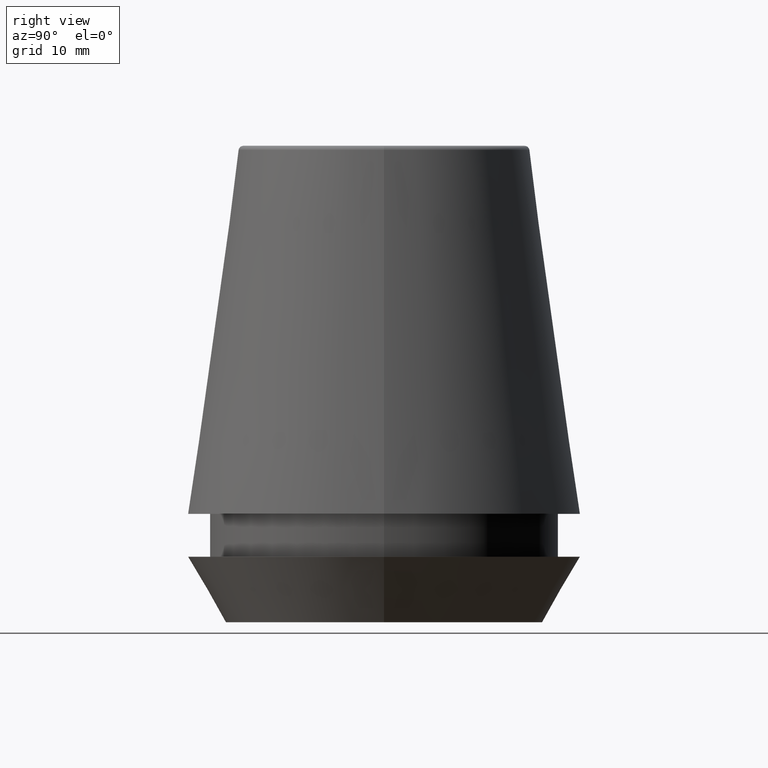
[diagram: clean part render]
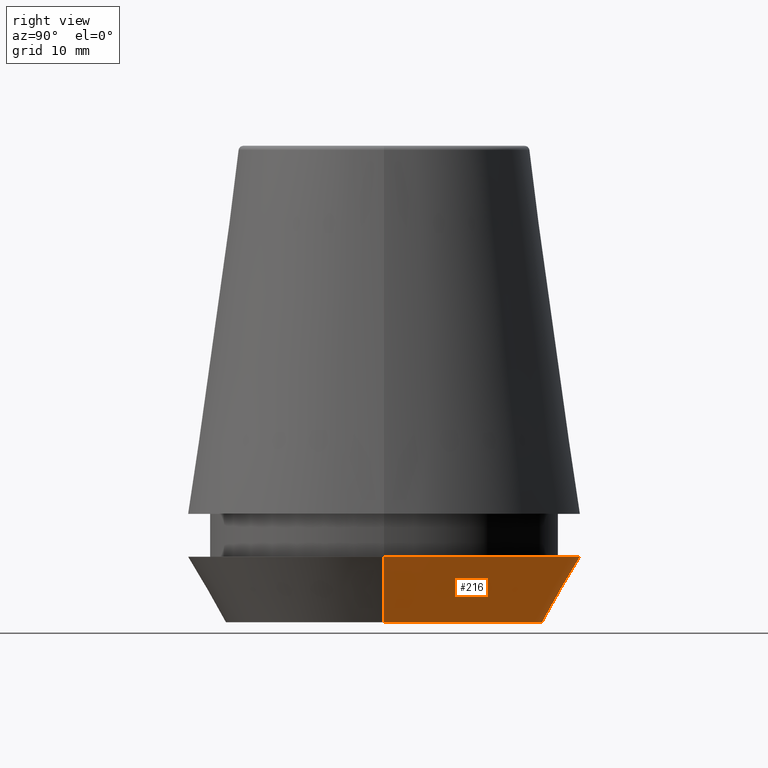
[diagram: same view with one face highlighted and labeled with its STEP entity id]
A machine part, right view. The second image highlights one B-rep face of the part: STEP entity #216.
In plain terms, the highlighted conical surface has half-angle 30 deg.
Its self-contained STEP definition (entity closure, byte-faithful):
#23 = ORIENTED_EDGE ( 'NONE', *, *, #201, .F. ) ;
#31 = AXIS2_PLACEMENT_3D ( 'NONE', #97, #112, #123 ) ;
#45 = ORIENTED_EDGE ( 'NONE', *, *, #364, .T. ) ;
#49 = AXIS2_PLACEMENT_3D ( 'NONE', #256, #360, #74 ) ;
#54 = DIRECTION ( 'NONE',  ( -0.0000000000000000000, -0.0000000000000000000, 1.000000000000000000 ) ) ;
#74 = DIRECTION ( 'NONE',  ( 1.000000000000000000, 0.0000000000000000000, 0.0000000000000000000 ) ) ;
#86 = LINE ( 'NONE', #204, #237 ) ;
#97 = CARTESIAN_POINT ( 'NONE',  ( 0.0000000000000000000, 0.0000000000000000000, 0.0000000000000000000 ) ) ;
#99 = EDGE_CURVE ( 'NONE', #109, #194, #288, .T. ) ;
#101 = LINE ( 'NONE', #333, #369 ) ;
#109 = VERTEX_POINT ( 'NONE', #207 ) ;
#112 = DIRECTION ( 'NONE',  ( -0.0000000000000000000, -0.0000000000000000000, 1.000000000000000000 ) ) ;
#123 = DIRECTION ( 'NONE',  ( 1.000000000000000000, 0.0000000000000000000, 0.0000000000000000000 ) ) ;
#132 = CIRCLE ( 'NONE', #329, 16.50000000000000000 ) ;
#149 = DIRECTION ( 'NONE',  ( 1.000000000000000000, 0.0000000000000000000, 0.0000000000000000000 ) ) ;
#162 = VERTEX_POINT ( 'NONE', #203 ) ;
#194 = VERTEX_POINT ( 'NONE', #335 ) ;
#201 = EDGE_CURVE ( 'NONE', #350, #162, #132, .T. ) ;
#203 = CARTESIAN_POINT ( 'NONE',  ( -16.50000000000000000, 2.020667218593133100E-015, 5.500000000000005300 ) ) ;
#204 = CARTESIAN_POINT ( 'NONE',  ( 13.32457351945710200, 0.0000000000000000000, 0.0000000000000000000 ) ) ;
#207 = CARTESIAN_POINT ( 'NONE',  ( 13.32457351945710200, 0.0000000000000000000, 0.0000000000000000000 ) ) ;
#216 = ADVANCED_FACE ( 'NONE', ( #355 ), #307, .T. ) ;
#228 = EDGE_CURVE ( 'NONE', #109, #350, #86, .T. ) ;
#237 = VECTOR ( 'NONE', #268, 999.9999999999998900 ) ;
#246 = EDGE_LOOP ( 'NONE', ( #337, #45, #23, #321 ) ) ;
#250 = CARTESIAN_POINT ( 'NONE',  ( 16.50000000000000000, 0.0000000000000000000, 5.500000000000005300 ) ) ;
#256 = CARTESIAN_POINT ( 'NONE',  ( 0.0000000000000000000, 0.0000000000000000000, 0.0000000000000000000 ) ) ;
#268 = DIRECTION ( 'NONE',  ( 0.4999999999999947300, 0.0000000000000000000, 0.8660254037844418200 ) ) ;
#288 = CIRCLE ( 'NONE', #49, 13.32457351945710200 ) ;
#307 = CONICAL_SURFACE ( 'NONE', #31, 13.32457351945710200, 0.5235987755982927100 ) ;
#312 = CARTESIAN_POINT ( 'NONE',  ( 0.0000000000000000000, 0.0000000000000000000, 5.500000000000005300 ) ) ;
#321 = ORIENTED_EDGE ( 'NONE', *, *, #228, .F. ) ;
#329 = AXIS2_PLACEMENT_3D ( 'NONE', #312, #54, #149 ) ;
#333 = CARTESIAN_POINT ( 'NONE',  ( -13.32457351945710200, 1.631789631060672300E-015, 0.0000000000000000000 ) ) ;
#335 = CARTESIAN_POINT ( 'NONE',  ( -13.32457351945710200, 1.826228424826902600E-015, 0.0000000000000000000 ) ) ;
#337 = ORIENTED_EDGE ( 'NONE', *, *, #99, .T. ) ;
#350 = VERTEX_POINT ( 'NONE', #250 ) ;
#355 = FACE_OUTER_BOUND ( 'NONE', #246, .T. ) ;
#360 = DIRECTION ( 'NONE',  ( -0.0000000000000000000, -0.0000000000000000000, 1.000000000000000000 ) ) ;
#364 = EDGE_CURVE ( 'NONE', #194, #162, #101, .T. ) ;
#369 = VECTOR ( 'NONE', #371, 999.9999999999998900 ) ;
#371 = DIRECTION ( 'NONE',  ( -0.4999999999999947300, 6.123233995736700700E-017, 0.8660254037844418200 ) ) ;